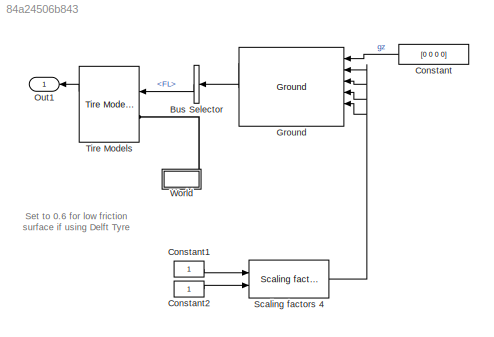
MODEL slx_84a24506b843
KIND model
CONFIG AbsTol = auto
CONFIG EnableMultiTasking = off
CONFIG FixedStep = auto
CONFIG MaxStep = auto
CONFIG MinStep = auto
CONFIG RelTol = 1e-3
CONFIG SampleTimeConstraint = Unconstrained
CONFIG SolverName = VariableStepAuto
CONFIG StartTime = 0.0
CONFIG StopTime = 10.0
BLOCK [BusSelector] Bus Selector
  OutputSignals = FL
  Ports = [1, 1]
BLOCK [Constant] Constant
  Value = [0 0 0 0]
BLOCK [Constant] Constant1
  NameLocation = top
BLOCK [Constant] Constant2
BLOCK [Reference] Ground  REF=sm_car_lib/Tires/Ground  (lib defined in slx_05426f0848b6, slx_5dc2867fb1c9)
  Ports = [6, 4]
  SourceBlock = sm_car_lib/Tires/Ground
  SourceType = SubSystem
BLOCK [Outport] Out1
  OutDataTypeStr = Bus: VehicleChassisWhlFLBusDef
  VectorParamsAs1DForOutWhenUnconnected = off
BLOCK [Reference] Scaling factors 4  REF=sm_car_lib/Tires/Scaling factors 4  (lib defined in slx_05426f0848b6, slx_5dc2867fb1c9)
  Ports = [2, 1]
  SourceBlock = sm_car_lib/Tires/Scaling factors 4
BLOCK [Reference] Tire Models  REF=Tire_Models/Tire Models
  AttributesFormatString = %<ActiveVariant>
  Ports = [1, 1, 0, 0, 0, 1, 1]
  SourceBlock = Tire_Models/Tire Models
  SourceType = Tire
  Tag = PublishSubsystem
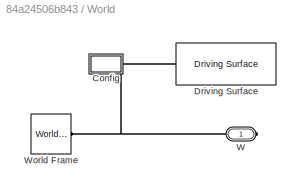
BLOCK [SubSystem] World
  Ports = [0, 0, 0, 0, 0, 0, 1]
  RequestExecContextInheritance = off
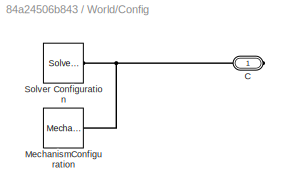
BLOCK [SubSystem] World/Config
  NameLocation = top
  Ports = [0, 0, 0, 0, 0, 0, 1]
  RequestExecContextInheritance = off
BLOCK [PMIOPort] World/Config/C
  Side = Right
BLOCK [Reference] World/Config/MechanismConfiguration  REF=sm_lib/Utilities/Mechanism
Configuration
  Ports = [0, 0, 0, 0, 0, 0, 1]
  SourceBlock = sm_lib/Utilities/Mechanism\nConfiguration
  SourceProductBaseCode = MS
  SourceType = Mechanism\nConfiguration
BLOCK [Reference] World/Config/Solver Configuration  REF=nesl_utility/Solver
Configuration
  Ports = [0, 0, 0, 0, 0, 0, 1]
  SourceBlock = nesl_utility/Solver\nConfiguration
  SourceProductBaseCode = SS,PW,VE
  SourceType = Solver\nConfiguration
BLOCK [Reference] World/Driving Surface  REF=sm_car_lib/Environment/Driving Surface  (lib defined in slx_05426f0848b6, slx_5dc2867fb1c9)
  Ports = [0, 0, 0, 0, 0, 0, 1]
  SourceBlock = sm_car_lib/Environment/Driving Surface
  SourceType = Driving Surface
BLOCK [PMIOPort] World/W
  Side = Right
BLOCK [Reference] World/World Frame  REF=sm_lib/Frames and
Transforms/World Frame
  Ports = [0, 0, 0, 0, 0, 0, 1]
  SourceBlock = sm_lib/Frames and\nTransforms/World Frame
  SourceProductBaseCode = MS
  SourceType = World Frame
ANNOTATION (root): Set to 0.6 for low friction surface if using Delft Tyre
LINE Bus Selector:1 -> Tire Models:1
LINE Constant1:1 -> Scaling factors 4:1
LINE Constant2:1 -> Scaling factors 4:2
LINE Constant:1 -> Ground:1
LINE Ground:1 -> Bus Selector:1
NET Scaling factors 4:1 -> Ground:2, Ground:3, Ground:4, Ground:5
LINE Tire Models:1 -> Out1:1
PLINE Tire Models:LConn1 -- World:RConn1
PNET net1: World/Config/C:RConn1 -- World/Config/MechanismConfiguration:RConn1 -- World/Config/Solver Configuration:RConn1
PNET net2: World/Config:RConn1 -- World/Driving Surface:RConn1 -- World/W:RConn1 -- World/World Frame:RConn1
note: NET lines group one-source signal fan-out (src -> all destinations, sorted); 1:1 wires keep LINE; PNET lines group multi-terminal physical nets as a canonical sorted terminal list (undirected conserving connections); 2-terminal nets keep the pairwise PLINE form
